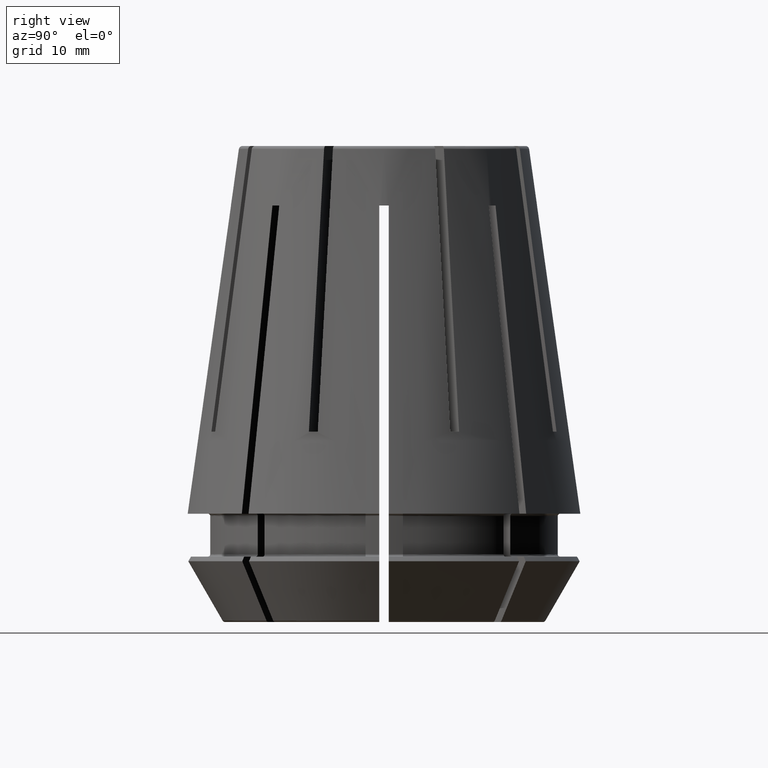
[diagram: clean part render]
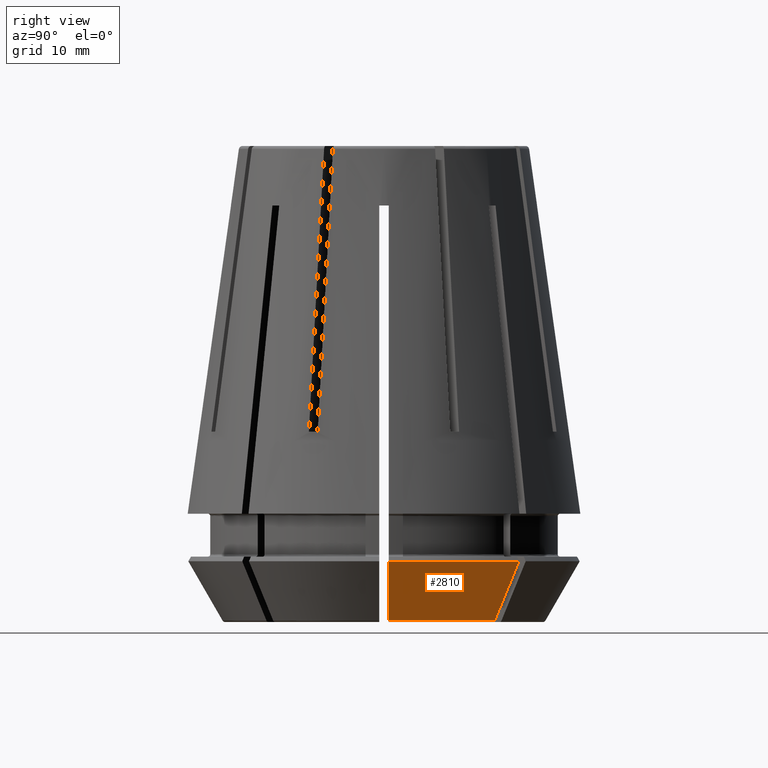
[diagram: same view with one face highlighted and labeled with its STEP entity id]
A machine part, right view. The second image highlights one B-rep face of the part: STEP entity #2810.
In plain terms, the highlighted conical surface has half-angle 30 deg.
Its self-contained STEP definition (entity closure, byte-faithful):
#32=CONICAL_SURFACE('',#3026,16.4464101615138,0.523598775598299);
#779=ORIENTED_EDGE('',*,*,#1660,.F.);
#780=ORIENTED_EDGE('',*,*,#1583,.T.);
#781=ORIENTED_EDGE('',*,*,#1661,.F.);
#782=ORIENTED_EDGE('',*,*,#1662,.F.);
#1583=EDGE_CURVE('',#2030,#2029,#2235,.T.);
#1660=EDGE_CURVE('',#2030,#2089,#2263,.T.);
#1661=EDGE_CURVE('',#2090,#2029,#2264,.T.);
#1662=EDGE_CURVE('',#2089,#2090,#2265,.T.);
#2029=VERTEX_POINT('',#4500);
#2030=VERTEX_POINT('',#4502);
#2089=VERTEX_POINT('',#4736);
#2090=VERTEX_POINT('',#4738);
#2235=CIRCLE('',#2982,94735.3632322729);
#2263=CIRCLE('',#3027,13.5717423031058);
#2264=CIRCLE('',#3028,16.4464101615138);
#2265=CIRCLE('',#3029,95478.8596609489);
#2418=EDGE_LOOP('',(#779,#780,#781,#782));
#2574=FACE_BOUND('',#2418,.T.);
#2810=ADVANCED_FACE('',(#2574),#32,.T.);
#2982=AXIS2_PLACEMENT_3D('',#4501,#3410,#3411);
#3026=AXIS2_PLACEMENT_3D('',#4734,#3523,#3524);
#3027=AXIS2_PLACEMENT_3D('',#4735,#3525,#3526);
#3028=AXIS2_PLACEMENT_3D('',#4737,#3527,#3528);
#3029=AXIS2_PLACEMENT_3D('',#4739,#3529,#3530);
#3410=DIRECTION('',(0.707106781136244,-0.707106781236851,4.11574364050631E-11));
#3411=DIRECTION('',(0.612306800493615,0.612306800377384,-0.500160738444035));
#3523=DIRECTION('',(0.,0.,1.));
#3524=DIRECTION('',(1.,0.,0.));
#3525=DIRECTION('',(0.,0.,-1.));
#3526=DIRECTION('',(-1.,0.,0.));
#3527=DIRECTION('',(0.,0.,1.));
#3528=DIRECTION('',(1.,0.,0.));
#3529=DIRECTION('',(0.,-1.,0.));
#3530=DIRECTION('',(0.86593269970297,0.,-0.50016053381402));
#4500=CARTESIAN_POINT('',(11.9087707872724,11.3430853623232,-3.99592921435211));
#4501=CARTESIAN_POINT('',(-57997.2318096435,-57997.7974840573,47373.9342310174));
#4502=CARTESIAN_POINT('',(9.87534470992179,9.30965928496749,-8.97499999999976));
#4734=CARTESIAN_POINT('',(0.,0.,-3.99592921435211));
#4735=CARTESIAN_POINT('',(0.,0.,-8.975));
#4736=CARTESIAN_POINT('',(13.5658464218724,0.400000000000002,-8.97499999999976));
#4737=CARTESIAN_POINT('',(0.,0.,-3.99592921435211));
#4738=CARTESIAN_POINT('',(16.4415451585532,0.4,-3.99592921435211));
#4739=CARTESIAN_POINT('',(-82664.7008643446,0.4,47745.7824159742));